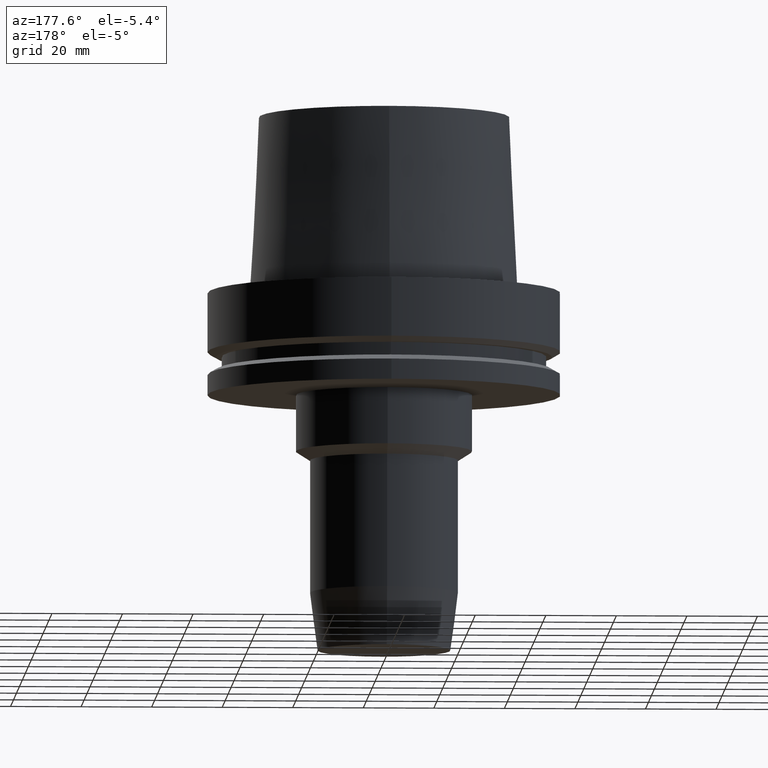
[diagram: clean part render]
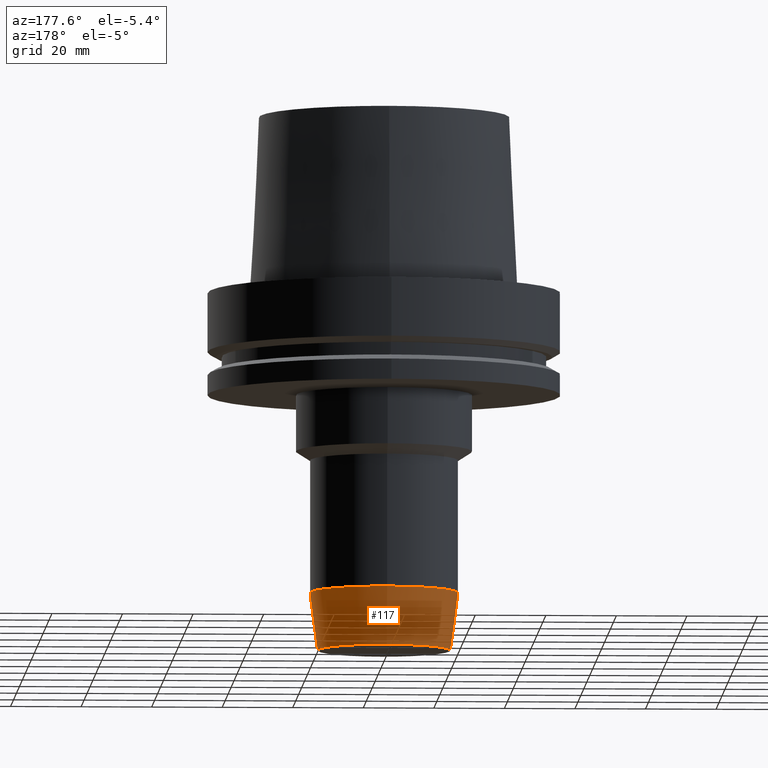
[diagram: same view with one face highlighted and labeled with its STEP entity id]
A machine part, auxiliary view. The second image highlights one B-rep face of the part: STEP entity #117.
In plain terms, the highlighted conical surface has half-angle 7.5 deg.
Its self-contained STEP definition (entity closure, byte-faithful):
#87=EDGE_CURVE('Unnamed[1]',#202,#202,#203,.T.);
#117=ADVANCED_FACE('Unnamed[1]',(#248,#249),#250,.T.);
#128=EDGE_CURVE('Unnamed[1]',#265,#265,#266,.T.);
#202=VERTEX_POINT('',#345);
#203=CIRCLE('',#346,18.8468234019571);
#248=FACE_BOUND('',#403,.T.);
#249=FACE_BOUND('',#404,.T.);
#250=CONICAL_SURFACE('',#405,19.9234117009781,0.13089969389958);
#265=VERTEX_POINT('',#425);
#266=CIRCLE('',#426,20.9999999999991);
#345=CARTESIAN_POINT('',(6.22120573966855E-015,18.8468234019571,-101.6));
#346=AXIS2_PLACEMENT_3D('',#497,#498,#499);
#403=EDGE_LOOP('',(#548));
#404=EDGE_LOOP('',(#549));
#405=AXIS2_PLACEMENT_3D('',#550,#551,#552);
#425=CARTESIAN_POINT('',(5.21975081966579E-015,20.9999999999991,-85.2449999999997));
#426=AXIS2_PLACEMENT_3D('',#567,#568,#569);
#497=CARTESIAN_POINT('',(6.22120573966855E-015,1.24424114793371E-014,-101.6));
#498=DIRECTION('',(6.12323399573677E-017,1.22464679914735E-016,-1.0));
#499=DIRECTION('',(-1.23259516440783E-032,1.0,1.22464679914735E-016));
#548=ORIENTED_EDGE('',*,*,#87,.F.);
#549=ORIENTED_EDGE('',*,*,#128,.T.);
#550=CARTESIAN_POINT('',(5.72047827966717E-015,1.14409565593343E-014,-93.4224999999999));
#551=DIRECTION('',(-6.12323399573677E-017,-1.22464679914735E-016,1.0));
#552=DIRECTION('',(-1.23259516440783E-032,1.0,1.22464679914735E-016));
#567=CARTESIAN_POINT('',(5.21975081966579E-015,1.04395016393316E-014,-85.2449999999997));
#568=DIRECTION('',(6.12323399573677E-017,1.22464679914735E-016,-1.0));
#569=DIRECTION('',(-1.23259516440783E-032,1.0,1.22464679914735E-016));